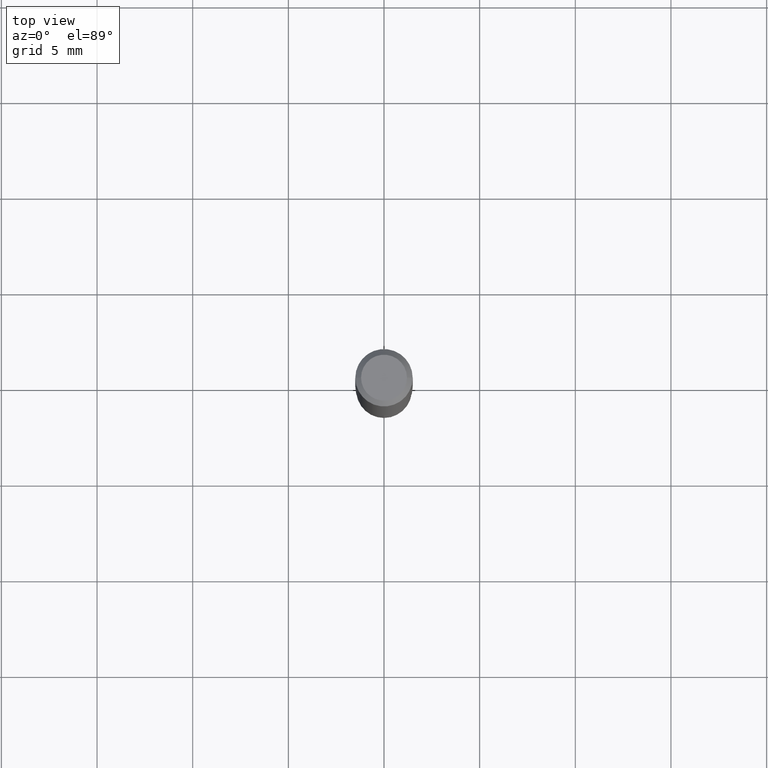
[diagram: clean part render]
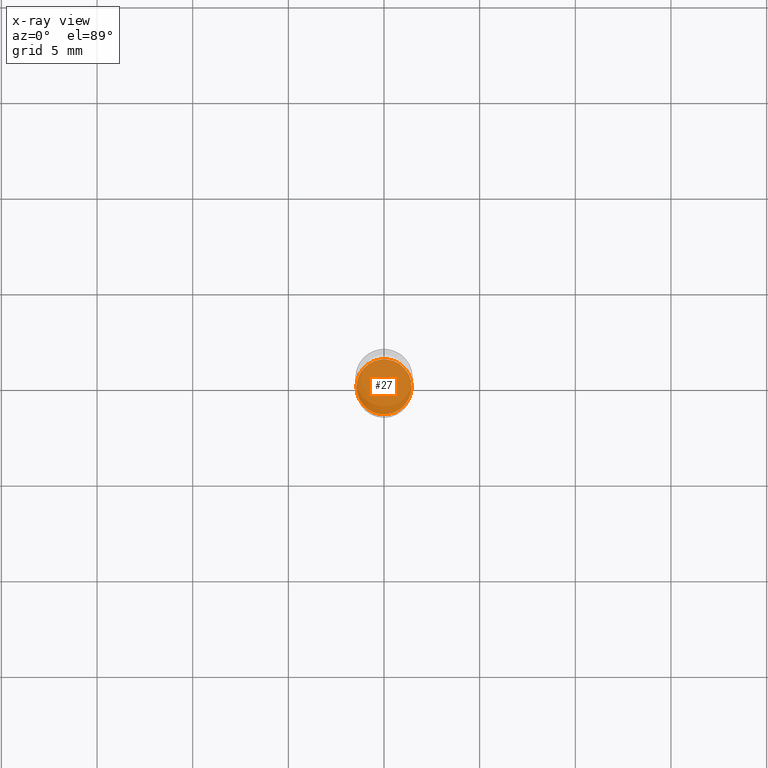
[diagram: x-ray — body ghosted, one internal face saturated and labeled with its STEP entity id]
A machine part, top view, then the same camera in x-ray: the body is ghosted and one INTERNAL B-rep face — a face not visible from any outside direction — is saturated and labeled: STEP entity #27.
In plain terms, the highlighted planar face has unit normal (-0, 0, 1).
Its self-contained STEP definition (entity closure, byte-faithful):
#24 = EDGE_CURVE ( 'NONE', #196, #249, #103, .T. ) ;
#27 = ADVANCED_FACE ( 'NONE', ( #179 ), #408, .F. ) ;
#29 = CARTESIAN_POINT ( 'NONE',  ( -0.05679999999999998939, -3.415188824277974545E-15, -1.094500000000000028 ) ) ;
#60 = AXIS2_PLACEMENT_3D ( 'NONE', #259, #98, #410 ) ;
#98 = DIRECTION ( 'NONE',  ( -2.438088387897960049E-29, 3.491481338843145188E-15, 1.000000000000000000 ) ) ;
#103 = CIRCLE ( 'NONE', #454, 0.05679999999999998939 ) ;
#131 = ORIENTED_EDGE ( 'NONE', *, *, #24, .F. ) ;
#179 = FACE_OUTER_BOUND ( 'NONE', #443, .T. ) ;
#196 = VERTEX_POINT ( 'NONE', #29 ) ;
#249 = VERTEX_POINT ( 'NONE', #404 ) ;
#259 = CARTESIAN_POINT ( 'NONE',  ( 8.386156365596109893E-30, -6.453475294611654186E-15, -1.094500000000000028 ) ) ;
#295 = CARTESIAN_POINT ( 'NONE',  ( 2.676565608369632355E-29, -3.821426325363822773E-15, -1.094500000000000028 ) ) ;
#303 = AXIS2_PLACEMENT_3D ( 'NONE', #434, #324, #401 ) ;
#317 = ORIENTED_EDGE ( 'NONE', *, *, #358, .F. ) ;
#324 = DIRECTION ( 'NONE',  ( -2.445468806185136597E-29, 3.491481338843145583E-15, 1.000000000000000000 ) ) ;
#358 = EDGE_CURVE ( 'NONE', #249, #196, #384, .T. ) ;
#364 = DIRECTION ( 'NONE',  ( 1.000000000000000000, -6.982962677686267499E-15, 0.000000000000000000 ) ) ;
#372 = DIRECTION ( 'NONE',  ( -2.445468806185136597E-29, 3.491481338843145583E-15, 1.000000000000000000 ) ) ;
#384 = CIRCLE ( 'NONE', #303, 0.05679999999999998939 ) ;
#401 = DIRECTION ( 'NONE',  ( 1.000000000000000000, -6.982962677686267499E-15, 0.000000000000000000 ) ) ;
#404 = CARTESIAN_POINT ( 'NONE',  ( 0.05679999999999998939, -4.218058605456403373E-15, -1.094500000000000028 ) ) ;
#408 = PLANE ( 'NONE',  #60 ) ;
#410 = DIRECTION ( 'NONE',  ( 1.000000000000000000, -6.982962677686265922E-15, 4.876176775795935793E-29 ) ) ;
#434 = CARTESIAN_POINT ( 'NONE',  ( 2.676565608369632355E-29, -3.821426325363822773E-15, -1.094500000000000028 ) ) ;
#443 = EDGE_LOOP ( 'NONE', ( #317, #131 ) ) ;
#454 = AXIS2_PLACEMENT_3D ( 'NONE', #295, #372, #364 ) ;